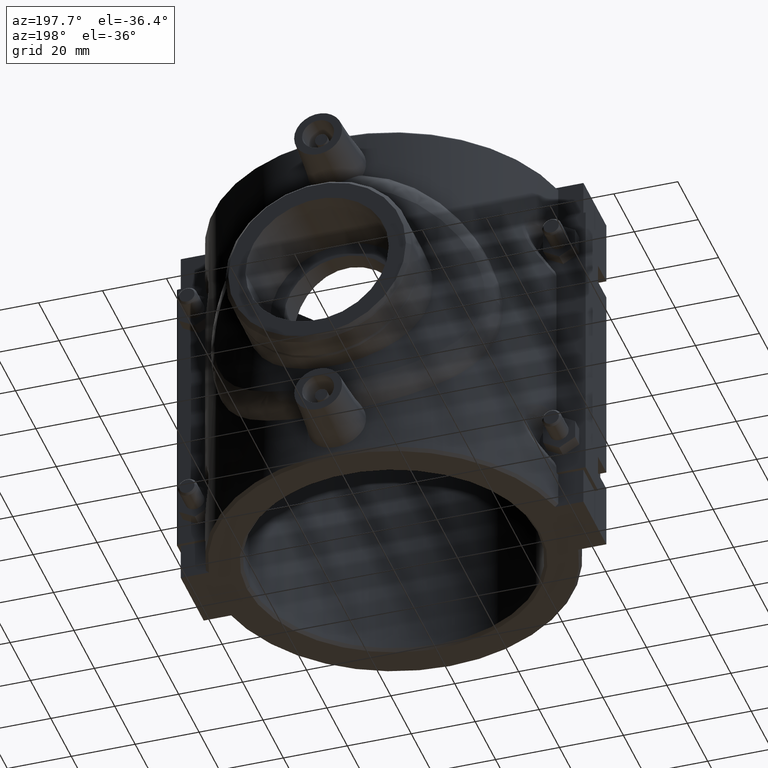
[diagram: clean part render]
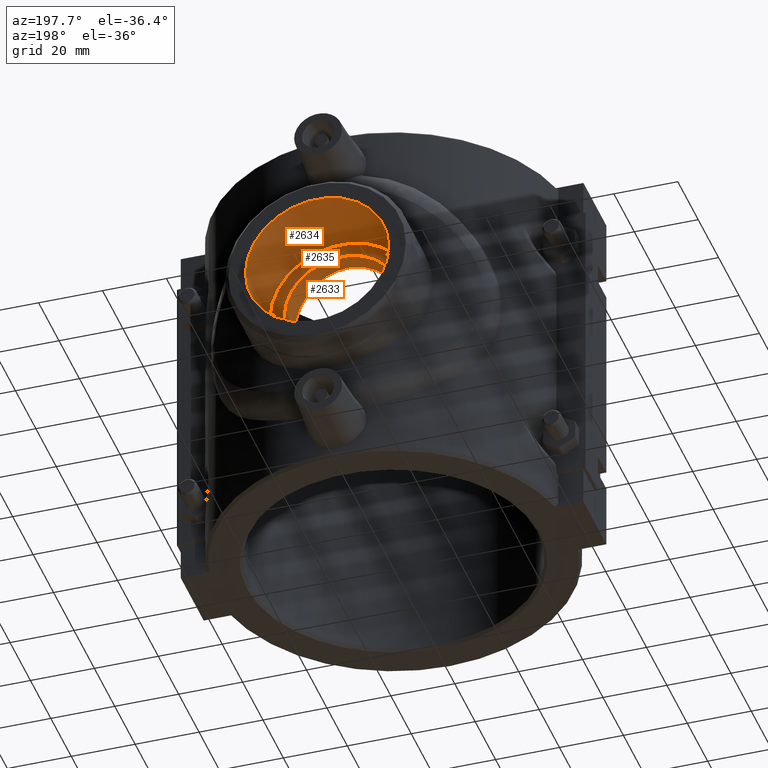
[diagram: same view with one multi-face feature highlighted, each face labeled with its STEP entity id]
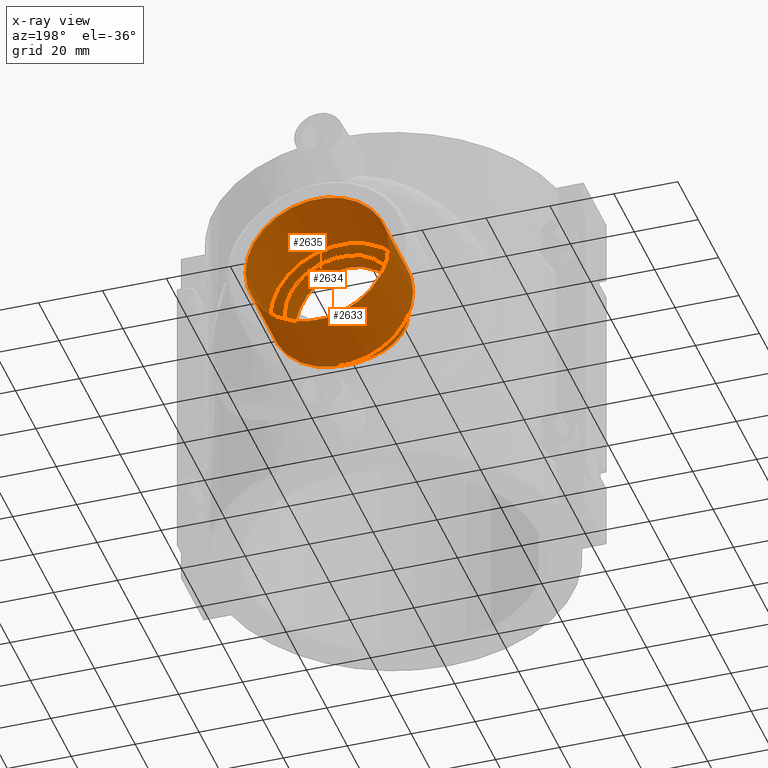
[diagram: x-ray of the same camera — body ghosted, the whole feature saturated]
A machine part, auxiliary view. The highlighted faces form ONE feature: a stepped (counterbored) hole: 2 coaxial cylindrical walls of radii 17.938 -> 22.4225 mm joined by 1 annular planar shoulder face(s). The faces share edges in the B-rep.
The next image is the same camera in x-ray: the body ghosted and the whole hole feature saturated, so the bore chain is visible through the body.
Their STEP definitions:
[1] entity #2634 (Cylinder):
#91=CYLINDRICAL_SURFACE('',#2857,22.4225);
#141=FACE_BOUND('',#532,.T.);
#335=FACE_OUTER_BOUND('',#531,.T.);
#531=EDGE_LOOP('',(#2279));
#532=EDGE_LOOP('',(#2280));
#1047=CIRCLE('',#2847,22.4225);
#1052=CIRCLE('',#2858,22.4225);
#1295=VERTEX_POINT('',#5481);
#1302=VERTEX_POINT('',#5631);
#1643=EDGE_CURVE('',#1295,#1295,#1047,.T.);
#1650=EDGE_CURVE('',#1302,#1302,#1052,.T.);
#2279=ORIENTED_EDGE('',*,*,#1650,.T.);
#2280=ORIENTED_EDGE('',*,*,#1643,.F.);
#2634=ADVANCED_FACE('',(#335,#141),#91,.F.);
#2847=AXIS2_PLACEMENT_3D('',#5482,#3433,#3434);
#2857=AXIS2_PLACEMENT_3D('',#5630,#3453,#3454);
#2858=AXIS2_PLACEMENT_3D('',#5632,#3455,#3456);
#3433=DIRECTION('center_axis',(0.,-1.,0.));
#3434=DIRECTION('ref_axis',(-1.,0.,0.));
#3453=DIRECTION('center_axis',(0.,-1.,0.));
#3454=DIRECTION('ref_axis',(-1.,0.,0.));
#3455=DIRECTION('center_axis',(0.,-1.,0.));
#3456=DIRECTION('ref_axis',(-1.,0.,0.));
#5481=CARTESIAN_POINT('',(22.4225,75.,-2.74596428538815E-15));
#5482=CARTESIAN_POINT('Origin',(0.,75.,0.));
#5630=CARTESIAN_POINT('Origin',(0.,75.,0.));
#5631=CARTESIAN_POINT('',(22.4225,51.,-2.74596428538815E-15));
#5632=CARTESIAN_POINT('Origin',(0.,51.,0.));
[2] entity #2633 (Cylinder):
#90=CYLINDRICAL_SURFACE('',#2855,17.938);
#140=FACE_BOUND('',#530,.T.);
#211=B_SPLINE_CURVE_WITH_KNOTS('',3,(#5562,#5563,#5564,#5565,#5566,#5567,
#5568,#5569,#5570,#5571,#5572,#5573,#5574,#5575,#5576,#5577,#5578,#5579,
#5580,#5581,#5582,#5583,#5584,#5585,#5586,#5587,#5588,#5589,#5590,#5591,
#5592,#5593,#5594,#5595,#5596,#5597,#5598,#5599,#5600,#5601,#5602,#5603,
#5604,#5605,#5606,#5607,#5608,#5609,#5610,#5611,#5612,#5613,#5614,#5615,
#5616,#5617,#5618,#5619,#5620,#5621,#5622,#5623,#5624,#5625,#5626,#5627),
 .UNSPECIFIED.,.T.,.F.,(4,2,2,2,2,2,2,2,2,2,2,2,2,2,2,2,2,2,2,2,2,2,2,2,
2,2,2,2,2,2,2,2,4),(0.,0.342185077006773,0.684370154013546,1.02655523102032,
1.36874030802709,1.71058436136438,2.05242841470166,2.39427246803895,2.73611652137624,
3.07796057471352,3.41980462805081,3.76164868138809,4.10349273472538,4.44567781173215,
4.78786288873892,5.1300479657457,5.47223304275247,5.81441811975924,6.15660319676602,
6.49878827377279,6.84097335077956,7.18281740411685,7.52466145745414,7.86650551079142,
8.20834956412871,8.55019361746599,8.89203767080328,9.23388172414056,9.57572577747785,
9.91791085448462,10.2600959314914,10.6022810084982,10.9444660855049),
 .UNSPECIFIED.);
#334=FACE_OUTER_BOUND('',#529,.T.);
#529=EDGE_LOOP('',(#2277));
#530=EDGE_LOOP('',(#2278));
#1051=CIRCLE('',#2856,17.938);
#1300=VERTEX_POINT('',#5561);
#1301=VERTEX_POINT('',#5628);
#1648=EDGE_CURVE('',#1300,#1300,#211,.T.);
#1649=EDGE_CURVE('',#1301,#1301,#1051,.T.);
#2277=ORIENTED_EDGE('',*,*,#1648,.F.);
#2278=ORIENTED_EDGE('',*,*,#1649,.F.);
#2633=ADVANCED_FACE('',(#334,#140),#90,.F.);
#2855=AXIS2_PLACEMENT_3D('',#5560,#3449,#3450);
#2856=AXIS2_PLACEMENT_3D('',#5629,#3451,#3452);
#3449=DIRECTION('center_axis',(0.,-1.,0.));
#3450=DIRECTION('ref_axis',(-1.,0.,0.));
#3451=DIRECTION('center_axis',(0.,-1.,0.));
#3452=DIRECTION('ref_axis',(-1.,0.,0.));
#5560=CARTESIAN_POINT('Origin',(0.,51.,0.));
#5561=CARTESIAN_POINT('',(17.938,41.2701848311829,-2.77555756156289E-16));
#5562=CARTESIAN_POINT('Ctrl Pts',(17.938,41.2701848311829,-2.77555756156289E-16));
#5563=CARTESIAN_POINT('Ctrl Pts',(17.938,41.2701848311829,-1.14061692335591));
#5564=CARTESIAN_POINT('Ctrl Pts',(17.827465610968,41.3188094927121,-2.31547316307455));
#5565=CARTESIAN_POINT('Ctrl Pts',(17.3671046311375,41.5144098427303,-4.64366482043352));
#5566=CARTESIAN_POINT('Ctrl Pts',(17.0174286379407,41.6611484777969,-5.79704992326876));
#5567=CARTESIAN_POINT('Ctrl Pts',(16.0985228981755,42.0247747940341,-8.00226635899318));
#5568=CARTESIAN_POINT('Ctrl Pts',(15.5285646930065,42.2415318712699,-9.05609467884579));
#5569=CARTESIAN_POINT('Ctrl Pts',(14.2162508119447,42.7010719890805,-11.0021536638291));
#5570=CARTESIAN_POINT('Ctrl Pts',(13.4737606663559,42.9433951521364,-11.8944022154927));
#5571=CARTESIAN_POINT('Ctrl Pts',(11.8951892144744,43.4071484629257,-13.4729736673741));
#5572=CARTESIAN_POINT('Ctrl Pts',(11.0033187543611,43.6454288401622,-14.2153634294848));
#5573=CARTESIAN_POINT('Ctrl Pts',(9.05706527508952,44.0904303770984,-15.5280117756086));
#5574=CARTESIAN_POINT('Ctrl Pts',(8.00266287171652,44.2967686322466,-16.098371397511));
#5575=CARTESIAN_POINT('Ctrl Pts',(5.7962844585382,44.6391018170657,-17.0177338773679));
#5576=CARTESIAN_POINT('Ctrl Pts',(4.64232771188983,44.7751301746547,-17.3674674920888));
#5577=CARTESIAN_POINT('Ctrl Pts',(2.31394354379088,44.955635397792,-17.8276694762112));
#5578=CARTESIAN_POINT('Ctrl Pts',(1.13948017779095,45.,-17.938));
#5579=CARTESIAN_POINT('Ctrl Pts',(-1.13948017779095,45.,-17.938));
#5580=CARTESIAN_POINT('Ctrl Pts',(-2.31394354379088,44.955635397792,-17.8276694762112));
#5581=CARTESIAN_POINT('Ctrl Pts',(-4.64232771188983,44.7751301746547,-17.3674674920888));
#5582=CARTESIAN_POINT('Ctrl Pts',(-5.7962844585382,44.6391018170657,-17.0177338773679));
#5583=CARTESIAN_POINT('Ctrl Pts',(-8.00266287171652,44.2967686322466,-16.098371397511));
#5584=CARTESIAN_POINT('Ctrl Pts',(-9.05706527508952,44.0904303770984,-15.5280117756086));
#5585=CARTESIAN_POINT('Ctrl Pts',(-11.0033187543611,43.6454288401622,-14.2153634294848));
#5586=CARTESIAN_POINT('Ctrl Pts',(-11.8951892144744,43.4071484629257,-13.4729736673741));
#5587=CARTESIAN_POINT('Ctrl Pts',(-13.4737606663559,42.9433951521364,-11.8944022154927));
#5588=CARTESIAN_POINT('Ctrl Pts',(-14.2162508119447,42.7010719890805,-11.0021536638291));
#5589=CARTESIAN_POINT('Ctrl Pts',(-15.5285646930065,42.2415318712699,-9.0560946788458));
#5590=CARTESIAN_POINT('Ctrl Pts',(-16.0985228981755,42.0247747940341,-8.00226635899318));
#5591=CARTESIAN_POINT('Ctrl Pts',(-17.0174286379407,41.6611484777969,-5.79704992326876));
#5592=CARTESIAN_POINT('Ctrl Pts',(-17.3671046311375,41.5144098427303,-4.64366482043352));
#5593=CARTESIAN_POINT('Ctrl Pts',(-17.827465610968,41.3188094927121,-2.31547316307455));
#5594=CARTESIAN_POINT('Ctrl Pts',(-17.938,41.2701848311829,-1.14061692335591));
#5595=CARTESIAN_POINT('Ctrl Pts',(-17.938,41.2701848311829,1.14061692335591));
#5596=CARTESIAN_POINT('Ctrl Pts',(-17.827465610968,41.3188094927121,2.31547316307455));
#5597=CARTESIAN_POINT('Ctrl Pts',(-17.3671046311375,41.5144098427303,4.64366482043351));
#5598=CARTESIAN_POINT('Ctrl Pts',(-17.0174286379407,41.6611484777969,5.79704992326876));
#5599=CARTESIAN_POINT('Ctrl Pts',(-16.0985228981755,42.0247747940341,8.00226635899318));
#5600=CARTESIAN_POINT('Ctrl Pts',(-15.5285646930065,42.2415318712699,9.05609467884579));
#5601=CARTESIAN_POINT('Ctrl Pts',(-14.2162508119447,42.7010719890805,11.0021536638291));
#5602=CARTESIAN_POINT('Ctrl Pts',(-13.4737606663559,42.9433951521364,11.8944022154927));
#5603=CARTESIAN_POINT('Ctrl Pts',(-11.8951892144744,43.4071484629257,13.4729736673741));
#5604=CARTESIAN_POINT('Ctrl Pts',(-11.0033187543611,43.6454288401622,14.2153634294848));
#5605=CARTESIAN_POINT('Ctrl Pts',(-9.05706527508952,44.0904303770984,15.5280117756086));
#5606=CARTESIAN_POINT('Ctrl Pts',(-8.00266287171652,44.2967686322466,16.098371397511));
#5607=CARTESIAN_POINT('Ctrl Pts',(-5.7962844585382,44.6391018170657,17.0177338773679));
#5608=CARTESIAN_POINT('Ctrl Pts',(-4.64232771188982,44.7751301746547,17.3674674920888));
#5609=CARTESIAN_POINT('Ctrl Pts',(-2.31394354379088,44.955635397792,17.8276694762111));
#5610=CARTESIAN_POINT('Ctrl Pts',(-1.13948017779095,45.,17.938));
#5611=CARTESIAN_POINT('Ctrl Pts',(1.13948017779095,45.,17.938));
#5612=CARTESIAN_POINT('Ctrl Pts',(2.31394354379088,44.955635397792,17.8276694762112));
#5613=CARTESIAN_POINT('Ctrl Pts',(4.64232771188983,44.7751301746547,17.3674674920888));
#5614=CARTESIAN_POINT('Ctrl Pts',(5.7962844585382,44.6391018170657,17.0177338773679));
#5615=CARTESIAN_POINT('Ctrl Pts',(8.00266287171651,44.2967686322466,16.098371397511));
#5616=CARTESIAN_POINT('Ctrl Pts',(9.05706527508952,44.0904303770984,15.5280117756086));
#5617=CARTESIAN_POINT('Ctrl Pts',(11.0033187543611,43.6454288401622,14.2153634294848));
#5618=CARTESIAN_POINT('Ctrl Pts',(11.8951892144744,43.4071484629257,13.4729736673741));
#5619=CARTESIAN_POINT('Ctrl Pts',(13.4737606663559,42.9433951521364,11.8944022154927));
#5620=CARTESIAN_POINT('Ctrl Pts',(14.2162508119447,42.7010719890805,11.0021536638291));
#5621=CARTESIAN_POINT('Ctrl Pts',(15.5285646930065,42.2415318712699,9.05609467884579));
#5622=CARTESIAN_POINT('Ctrl Pts',(16.0985228981755,42.0247747940341,8.00226635899318));
#5623=CARTESIAN_POINT('Ctrl Pts',(17.0174286379407,41.6611484777969,5.79704992326876));
#5624=CARTESIAN_POINT('Ctrl Pts',(17.3671046311375,41.5144098427303,4.64366482043352));
#5625=CARTESIAN_POINT('Ctrl Pts',(17.827465610968,41.3188094927121,2.31547316307455));
#5626=CARTESIAN_POINT('Ctrl Pts',(17.938,41.2701848311829,1.14061692335591));
#5627=CARTESIAN_POINT('Ctrl Pts',(17.938,41.2701848311829,-2.77555756156289E-16));
#5628=CARTESIAN_POINT('',(17.938,51.,-2.19677142831052E-15));
#5629=CARTESIAN_POINT('Origin',(0.,51.,0.));
[3] entity #2635 (Plane):
#142=FACE_BOUND('',#534,.T.);
#336=FACE_OUTER_BOUND('',#533,.T.);
#533=EDGE_LOOP('',(#2281));
#534=EDGE_LOOP('',(#2282));
#1051=CIRCLE('',#2856,17.938);
#1052=CIRCLE('',#2858,22.4225);
#1301=VERTEX_POINT('',#5628);
#1302=VERTEX_POINT('',#5631);
#1649=EDGE_CURVE('',#1301,#1301,#1051,.T.);
#1650=EDGE_CURVE('',#1302,#1302,#1052,.T.);
#2281=ORIENTED_EDGE('',*,*,#1650,.F.);
#2282=ORIENTED_EDGE('',*,*,#1649,.T.);
#2494=PLANE('',#2859);
#2635=ADVANCED_FACE('',(#336,#142),#2494,.T.);
#2856=AXIS2_PLACEMENT_3D('',#5629,#3451,#3452);
#2858=AXIS2_PLACEMENT_3D('',#5632,#3455,#3456);
#2859=AXIS2_PLACEMENT_3D('',#5633,#3457,#3458);
#3451=DIRECTION('center_axis',(0.,-1.,0.));
#3452=DIRECTION('ref_axis',(-1.,0.,0.));
#3455=DIRECTION('center_axis',(0.,-1.,0.));
#3456=DIRECTION('ref_axis',(-1.,0.,0.));
#3457=DIRECTION('center_axis',(0.,1.,0.));
#3458=DIRECTION('ref_axis',(0.,0.,1.));
#5628=CARTESIAN_POINT('',(17.938,51.,-2.19677142831052E-15));
#5629=CARTESIAN_POINT('Origin',(0.,51.,0.));
#5631=CARTESIAN_POINT('',(22.4225,51.,-2.74596428538815E-15));
#5632=CARTESIAN_POINT('Origin',(0.,51.,0.));
#5633=CARTESIAN_POINT('Origin',(-8.89014264426138E-16,51.,-3.30091953655229E-16));